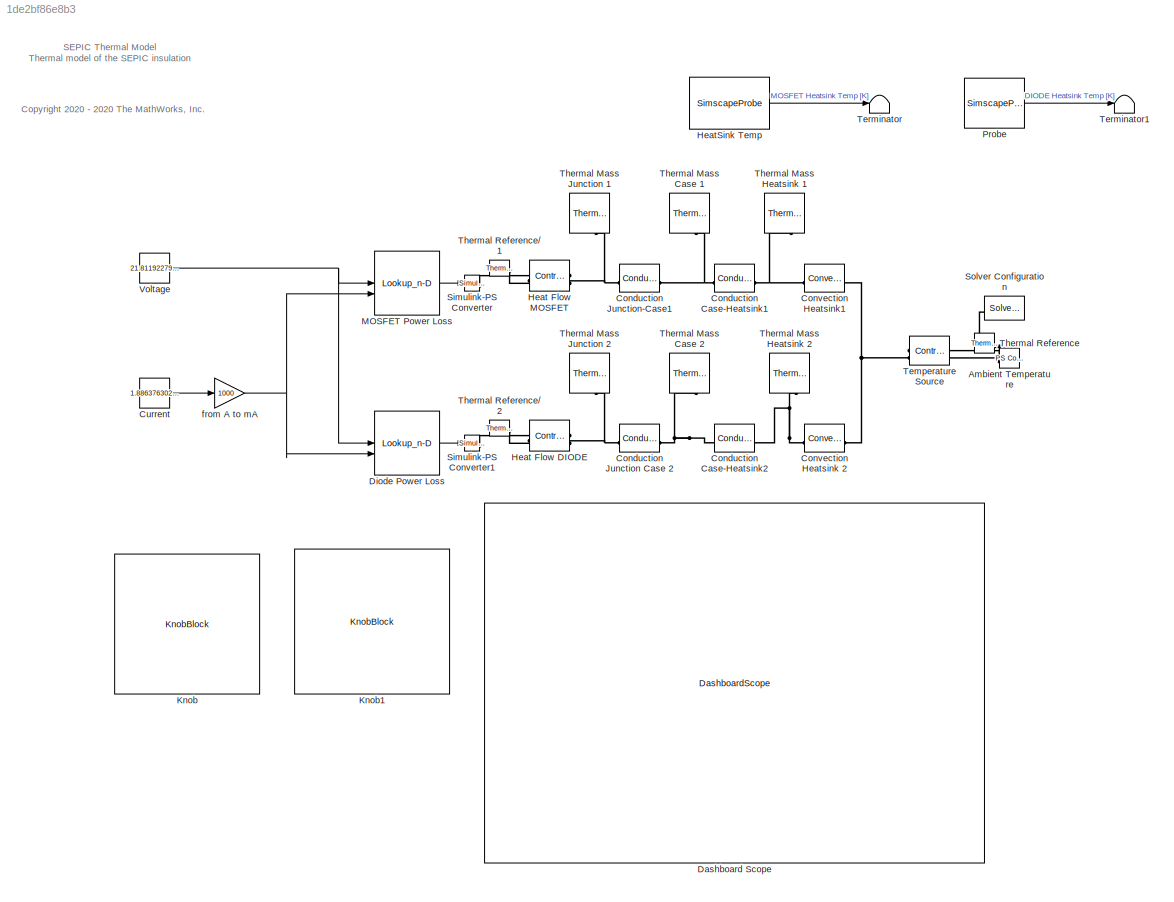
MODEL slx_1de2bf86e8b3
KIND model
CONFIG AbsTol = auto
CONFIG EnableMultiTasking = on
CONFIG FixedStep = auto
CONFIG MaxStep = auto
CONFIG MinStep = auto
CONFIG RelTol = 1e-3
CONFIG SampleTimeConstraint = Unconstrained
CONFIG SolverName = VariableStepAuto
CONFIG StartTime = 0.0
CONFIG StopTime = 3600*24
BLOCK [Reference] Ambient Temperature  REF=fl_lib/Physical Signals/Sources/PS Constant
  SourceBlock = fl_lib/Physical Signals/Sources/PS Constant
  SourceType = PS Constant
BLOCK [Reference] Conduction Case-Heatsink1  REF=fl_lib/Thermal/Thermal Elements/Conductive Heat
Transfer
  SourceBlock = fl_lib/Thermal/Thermal Elements/Conductive Heat\nTransfer
  SourceType = Conductive Heat\nTransfer
BLOCK [Reference] Conduction Case-Heatsink2  REF=fl_lib/Thermal/Thermal Elements/Conductive Heat
Transfer
  SourceBlock = fl_lib/Thermal/Thermal Elements/Conductive Heat\nTransfer
  SourceType = Conductive Heat\nTransfer
BLOCK [Reference] Conduction Junction Case 2  REF=fl_lib/Thermal/Thermal Elements/Conductive Heat
Transfer
  SourceBlock = fl_lib/Thermal/Thermal Elements/Conductive Heat\nTransfer
  SourceType = Conductive Heat\nTransfer
BLOCK [Reference] Conduction Junction-Case1  REF=fl_lib/Thermal/Thermal Elements/Conductive Heat
Transfer
  SourceBlock = fl_lib/Thermal/Thermal Elements/Conductive Heat\nTransfer
  SourceType = Conductive Heat\nTransfer
BLOCK [Reference] Convection Heatsink 2  REF=fl_lib/Thermal/Thermal Elements/Convective Heat
Transfer
  SourceBlock = fl_lib/Thermal/Thermal Elements/Convective Heat\nTransfer
  SourceType = Convective Heat\nTransfer
BLOCK [Reference] Convection Heatsink1  REF=fl_lib/Thermal/Thermal Elements/Convective Heat
Transfer
  SourceBlock = fl_lib/Thermal/Thermal Elements/Convective Heat\nTransfer
  SourceType = Convective Heat\nTransfer
BLOCK [Constant] Current
  Value = 1.886376302492862
BLOCK [DashboardScope] Dashboard Scope
  Ymax = 350
  Ymin = 273
BLOCK [Lookup_n-D] Diode Power Loss
  BreakpointsForDimension1 = Voltage_Test_Vector
  BreakpointsForDimension2 = Curr_Test_Load
  ExtrapMethod = Clip
  InputPortMap = u0,u1
  InternalRulePriority = Speed
  RndMeth = Simplest
  Table = diodeLossesMatrix'
BLOCK [Reference] Heat Flow DIODE  REF=fl_lib/Thermal/Thermal Sources/Controlled Heat Flow
Rate Source
  SourceBlock = fl_lib/Thermal/Thermal Sources/Controlled Heat Flow\nRate Source
  SourceType = Controlled Heat Flow\nRate Source
BLOCK [Reference] Heat Flow MOSFET  REF=fl_lib/Thermal/Thermal Sources/Controlled Heat Flow
Rate Source
  SourceBlock = fl_lib/Thermal/Thermal Sources/Controlled Heat Flow\nRate Source
  SourceType = Controlled Heat Flow\nRate Source
BLOCK [SimscapeProbe] HeatSink Temp
  BoundBlock = 254
  Variables = {T}
BLOCK [KnobBlock] Knob
  ScaleMax = 26
  ScaleMin = 10
BLOCK [KnobBlock] Knob1
  ScaleMax = 2
BLOCK [Lookup_n-D] MOSFET Power Loss
  BreakpointsForDimension1 = Voltage_Test_Vector
  BreakpointsForDimension2 = Curr_Test_Load
  InputPortMap = u0,u1
  InternalRulePriority = Speed
  RndMeth = Simplest
  Table = mosfetLossesMatrix'
BLOCK [SimscapeProbe] Probe
  BoundBlock = 256
  Variables = {T}
BLOCK [Reference] Simulink-PS Converter  REF=nesl_utility/Simulink-PS
Converter
  SourceBlock = nesl_utility/Simulink-PS\nConverter
  SourceType = Simulink-PS\nConverter
BLOCK [Reference] Simulink-PS Converter1  REF=nesl_utility/Simulink-PS
Converter
  SourceBlock = nesl_utility/Simulink-PS\nConverter
  SourceType = Simulink-PS\nConverter
BLOCK [Reference] Solver Configuration  REF=nesl_utility/Solver
Configuration
  NameLocation = top
  SourceBlock = nesl_utility/Solver\nConfiguration
  SourceType = Solver\nConfiguration
BLOCK [Reference] Temperature Source  REF=fl_lib/Thermal/Thermal Sources/Controlled
Temperature Source
  SourceBlock = fl_lib/Thermal/Thermal Sources/Controlled\nTemperature Source
  SourceType = Controlled\nTemperature Source
BLOCK [Terminator] Terminator
BLOCK [Terminator] Terminator1
BLOCK [Reference] Thermal Mass Case 1  REF=fl_lib/Thermal/Thermal Elements/Thermal Mass
  SourceBlock = fl_lib/Thermal/Thermal Elements/Thermal Mass
  SourceType = Thermal Mass
BLOCK [Reference] Thermal Mass Case 2  REF=fl_lib/Thermal/Thermal Elements/Thermal Mass
  SourceBlock = fl_lib/Thermal/Thermal Elements/Thermal Mass
  SourceType = Thermal Mass
BLOCK [Reference] Thermal Mass Heatsink 1  REF=fl_lib/Thermal/Thermal Elements/Thermal Mass
  SourceBlock = fl_lib/Thermal/Thermal Elements/Thermal Mass
  SourceType = Thermal Mass
BLOCK [Reference] Thermal Mass Heatsink 2  REF=fl_lib/Thermal/Thermal Elements/Thermal Mass
  SourceBlock = fl_lib/Thermal/Thermal Elements/Thermal Mass
  SourceType = Thermal Mass
BLOCK [Reference] Thermal Mass Junction 1  REF=fl_lib/Thermal/Thermal Elements/Thermal Mass
  SourceBlock = fl_lib/Thermal/Thermal Elements/Thermal Mass
  SourceType = Thermal Mass
BLOCK [Reference] Thermal Mass Junction 2  REF=fl_lib/Thermal/Thermal Elements/Thermal Mass
  SourceBlock = fl_lib/Thermal/Thermal Elements/Thermal Mass
  SourceType = Thermal Mass
BLOCK [Reference] Thermal Reference  REF=fl_lib/Thermal/Thermal Elements/Thermal Reference
  NameLocation = top
  SourceBlock = fl_lib/Thermal/Thermal Elements/Thermal Reference
  SourceType = Thermal Reference
BLOCK [Reference] Thermal Reference//1  REF=fl_lib/Thermal/Thermal Elements/Thermal Reference
  SourceBlock = fl_lib/Thermal/Thermal Elements/Thermal Reference
  SourceType = Thermal Reference
BLOCK [Reference] Thermal Reference//2  REF=fl_lib/Thermal/Thermal Elements/Thermal Reference
  SourceBlock = fl_lib/Thermal/Thermal Elements/Thermal Reference
  SourceType = Thermal Reference
BLOCK [Constant] Voltage
  Value = 21.81192279567789
BLOCK [Gain] from A to mA
  Gain = 1000
ANNOTATION (root): <copyright redacted>
ANNOTATION (root): SEPIC Thermal Model Thermal model of the SEPIC insulation
LINE Current:1 -> from A to mA:1
LINE Diode Power Loss:1 -> Simulink-PS Converter1:1
LINE HeatSink Temp:1 -> Terminator:1
LINE MOSFET Power Loss:1 -> Simulink-PS Converter:1
LINE Probe:1 -> Terminator1:1
NET Voltage:1 -> Diode Power Loss:1, MOSFET Power Loss:1
NET from A to mA:1 -> Diode Power Loss:2, MOSFET Power Loss:2
PLINE Ambient Temperature:RConn1 -- Temperature Source:RConn1
PNET net1: Conduction Case-Heatsink1:LConn1 -- Conduction Junction-Case1:RConn1 -- Thermal Mass Case 1:LConn1
PNET net2: Conduction Case-Heatsink1:RConn1 -- Convection Heatsink1:LConn1 -- Thermal Mass Heatsink 1:LConn1
PNET net3: Conduction Case-Heatsink2:LConn1 -- Conduction Junction Case 2:RConn1 -- Thermal Mass Case 2:LConn1
PNET net4: Conduction Case-Heatsink2:RConn1 -- Convection Heatsink 2:LConn1 -- Thermal Mass Heatsink 2:LConn1
PNET net5: Conduction Junction Case 2:LConn1 -- Heat Flow DIODE:LConn1 -- Thermal Mass Junction 2:LConn1
PNET net6: Conduction Junction-Case1:LConn1 -- Heat Flow MOSFET:LConn1 -- Thermal Mass Junction 1:LConn1
PNET net7: Convection Heatsink 2:RConn1 -- Convection Heatsink1:RConn1 -- Temperature Source:LConn1
PLINE Heat Flow DIODE:RConn1 -- Simulink-PS Converter1:RConn1
PLINE Heat Flow DIODE:RConn2 -- Thermal Reference//2:LConn1
PLINE Heat Flow MOSFET:RConn1 -- Simulink-PS Converter:RConn1
PLINE Heat Flow MOSFET:RConn2 -- Thermal Reference//1:LConn1
PNET net8: Solver Configuration:RConn1 -- Temperature Source:RConn2 -- Thermal Reference:LConn1
note: NET lines group one-source signal fan-out (src -> all destinations, sorted); 1:1 wires keep LINE; PNET lines group multi-terminal physical nets as a canonical sorted terminal list (undirected conserving connections); 2-terminal nets keep the pairwise PLINE form
